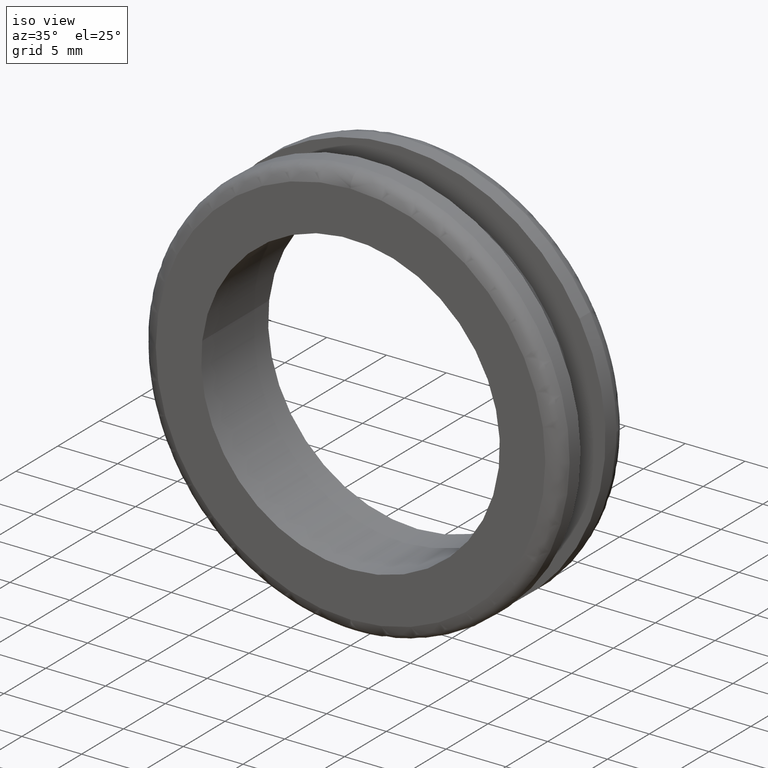
[diagram: clean part render]
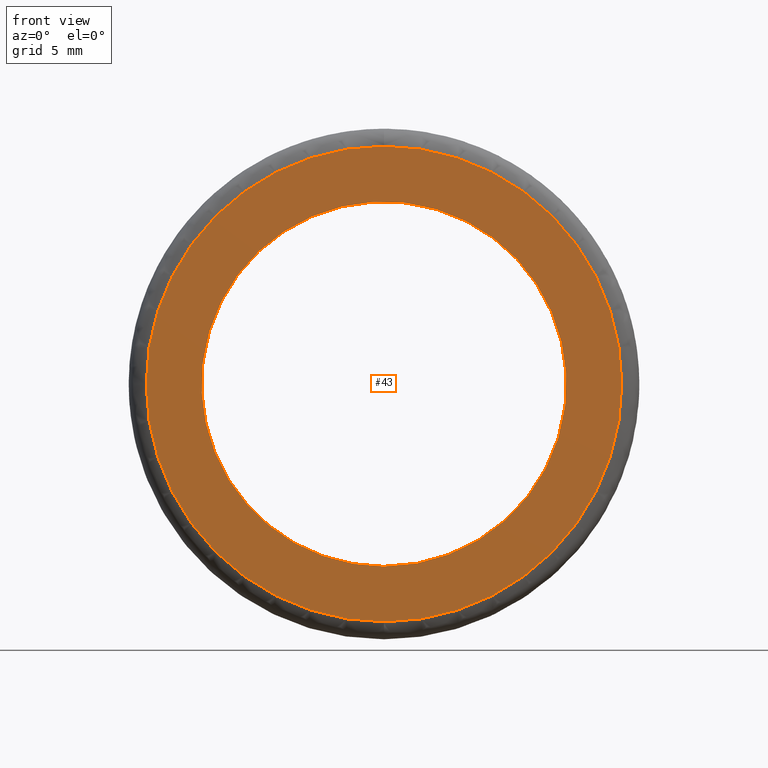
[diagram: tour spotlight — one face highlighted and labeled with its STEP entity id]
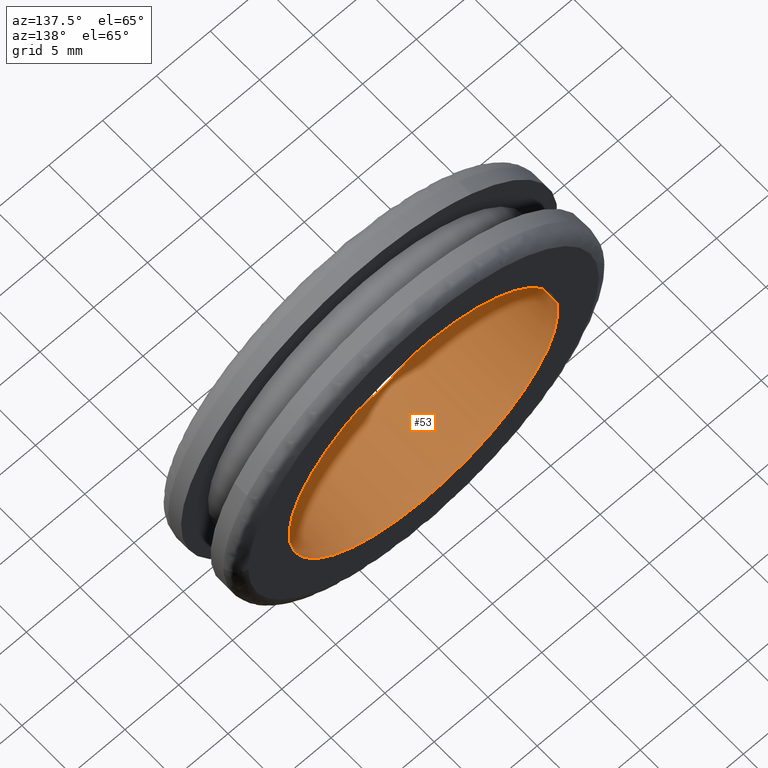
[diagram: tour spotlight — one face highlighted and labeled with its STEP entity id]
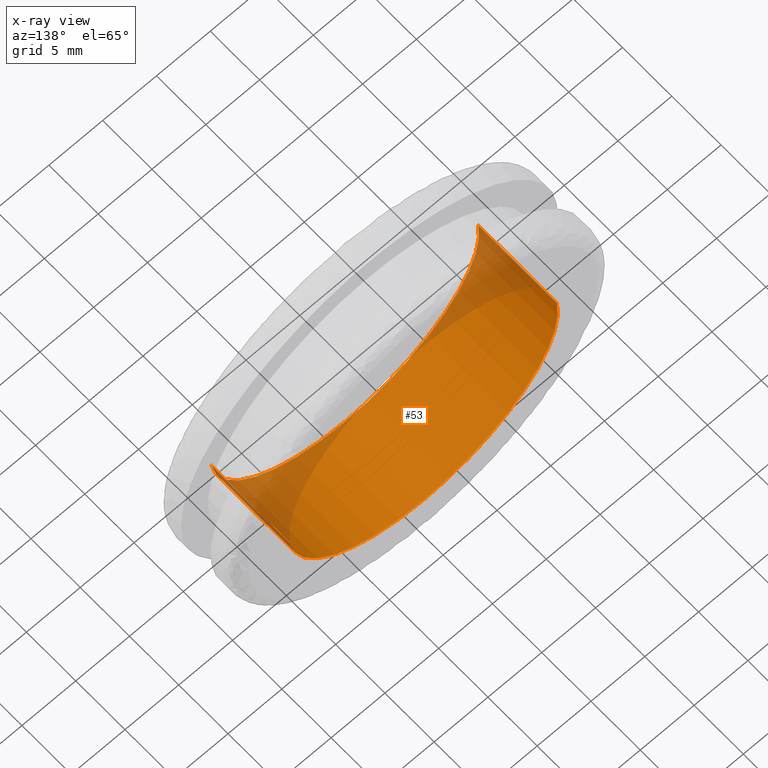
[diagram: x-ray of the same camera — body ghosted, this tour face saturated]
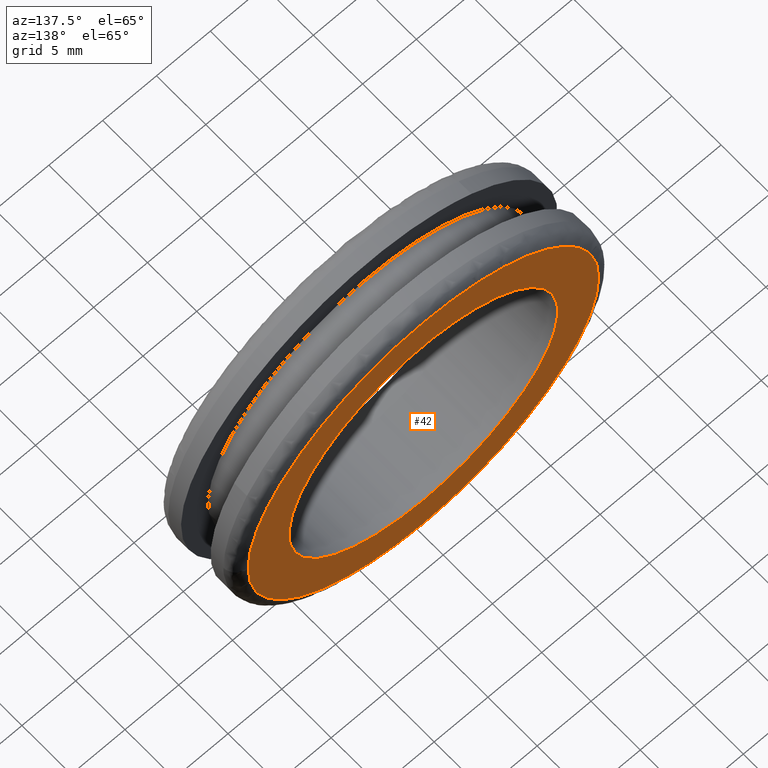
[diagram: tour spotlight — one face highlighted and labeled with its STEP entity id]
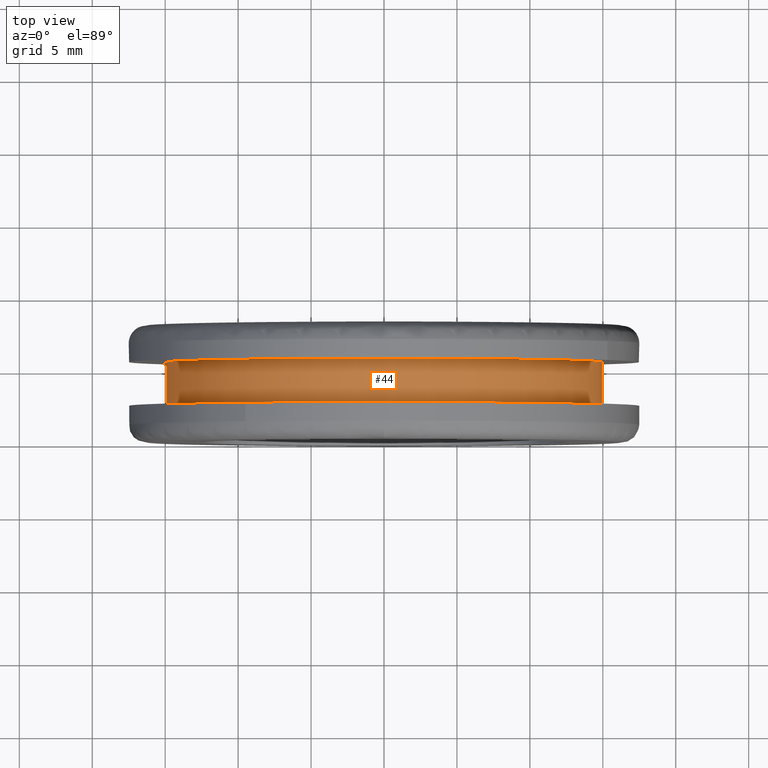
[diagram: tour spotlight — one face highlighted and labeled with its STEP entity id]
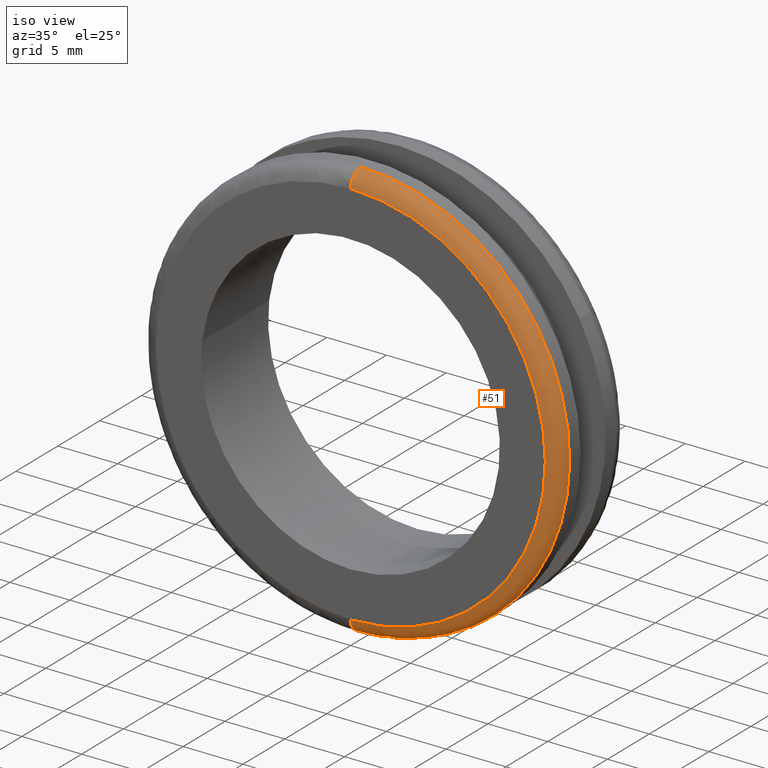
[diagram: tour spotlight — one face highlighted and labeled with its STEP entity id]
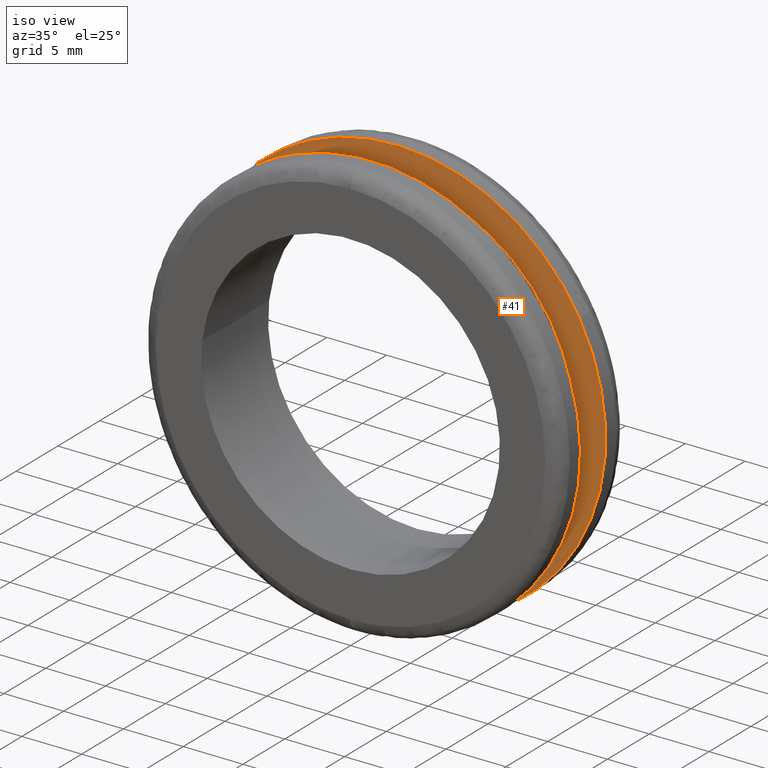
[diagram: tour spotlight — one face highlighted and labeled with its STEP entity id]
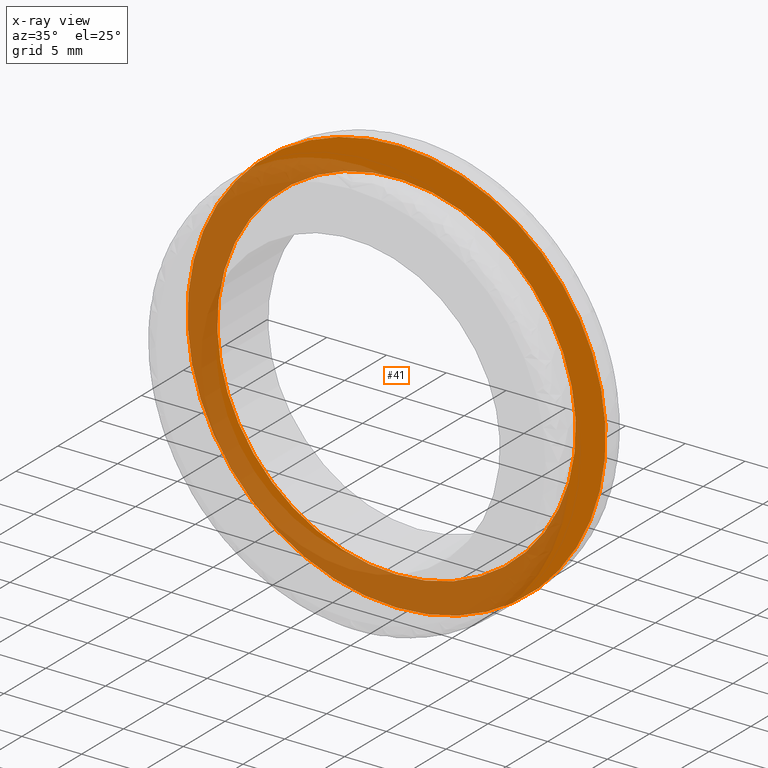
[diagram: x-ray of the same camera — body ghosted, this tour face saturated]
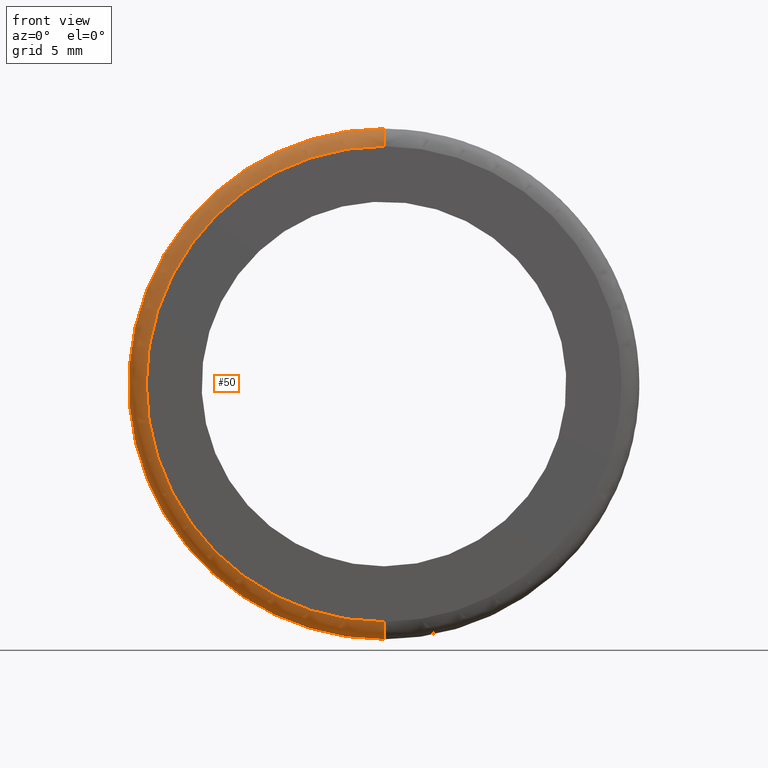
[diagram: tour spotlight — one face highlighted and labeled with its STEP entity id]
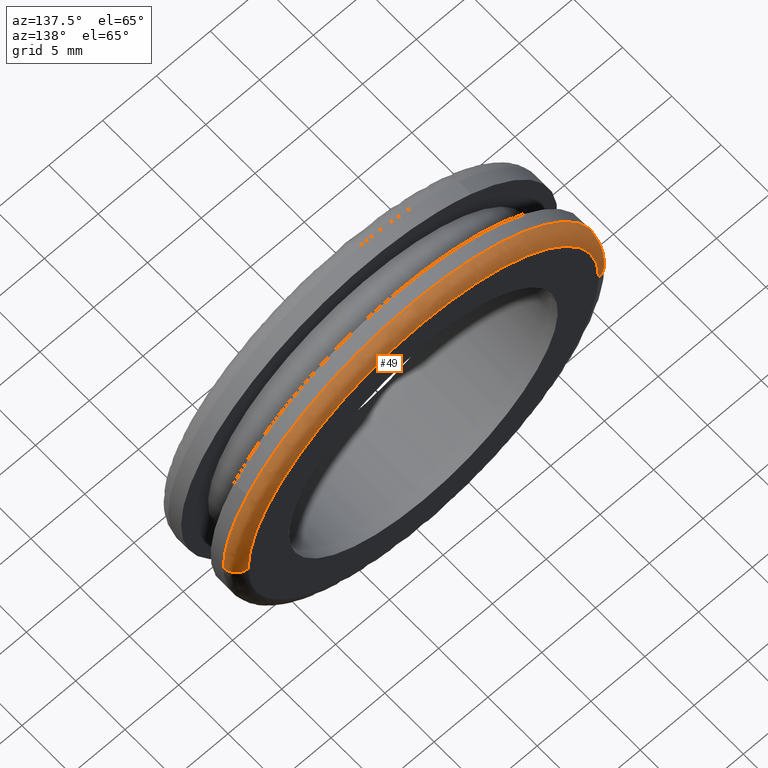
[diagram: tour spotlight — one face highlighted and labeled with its STEP entity id]
A machine part: a face-by-face anatomy tour. The part has 16 B-rep faces; the first image is the clean iso view, then the 8 largest visible faces are spotlighted one at a time (largest first), each with its STEP entity span.

Face 1 — front view, entity #43. In plain terms, the highlighted planar face has unit normal (0, 1, 0).
Definition (entity closure, byte-faithful):
#43=ADVANCED_FACE('',(#90,#91),#89,.F.);
#89=PLANE('',#241);
#90=FACE_OUTER_BOUND('',#242,.T.);
#91=FACE_BOUND('',#243,.T.);
#238=CARTESIAN_POINT('',(-3.38789137985E+001,-2.64515000000E-015,-3.74900000015E+001));
#239=DIRECTION('',(0.00000000000E+000,1.00000000000E+000,0.00000000000E+000));
#240=DIRECTION('',(0.00000000000E+000,0.00000000000E+000,1.00000000000E+000));
#241=AXIS2_PLACEMENT_3D('',#238,#239,#240);
#242=EDGE_LOOP('',(#406,#407));
#243=EDGE_LOOP('',(#408,#409,#410));
#406=ORIENTED_EDGE('',*,*,#504,.T.);
#407=ORIENTED_EDGE('',*,*,#505,.T.);
#408=ORIENTED_EDGE('',*,*,#506,.F.);
#409=ORIENTED_EDGE('',*,*,#507,.F.);
#410=ORIENTED_EDGE('',*,*,#508,.F.);
#504=EDGE_CURVE('',#661,#662,#663,.T.);
#505=EDGE_CURVE('',#662,#661,#669,.T.);
#506=EDGE_CURVE('',#675,#676,#677,.T.);
#507=EDGE_CURVE('',#683,#675,#684,.T.);
#508=EDGE_CURVE('',#676,#683,#690,.T.);
#661=VERTEX_POINT('',#956);
#662=VERTEX_POINT('',#957);
#663=CIRCLE('',#961,1.63000000012E+001);
#669=CIRCLE('',#965,1.63000000012E+001);
#675=VERTEX_POINT('',#966);
#676=VERTEX_POINT('',#967);
#677=CIRCLE('',#971,1.25000000000E+001);
#683=VERTEX_POINT('',#972);
#684=CIRCLE('',#976,1.25000000000E+001);
#690=CIRCLE('',#980,1.25000000000E+001);
#956=CARTESIAN_POINT('',(-3.02206897797E-015,4.51776817437E-016,1.63000000023E+001));
#957=CARTESIAN_POINT('',(-4.31335559862E-010,-2.99416300000E-015,-1.63000000000E+001));
#958=CARTESIAN_POINT('',(-2.15674589299E-010,-1.27119309128E-015,1.16149578844E-009));
#959=DIRECTION('',(-4.88729944223E-032,-1.00000000000E+000,1.05703675374E-016));
#960=DIRECTION('',(1.32308179418E-011,1.05703675374E-016,1.00000000000E+000));
#961=AXIS2_PLACEMENT_3D('',#958,#959,#960);
#962=CARTESIAN_POINT('',(-2.15674589299E-010,-1.27119309128E-015,1.16149578844E-009));
#963=DIRECTION('',(-4.88729944223E-032,-1.00000000000E+000,1.05703675374E-016));
#964=DIRECTION('',(1.32308179418E-011,1.05703675374E-016,1.00000000000E+000));
#965=AXIS2_PLACEMENT_3D('',#962,#963,#964);
#966=CARTESIAN_POINT('',(-1.24126196191E+001,2.54997240288E-016,1.47542339399E+000));
#967=CARTESIAN_POINT('',(-5.10702591328E-015,2.09342961238E-014,-1.25000000000E+001));
#968=CARTESIAN_POINT('',(3.67794683598E-012,-3.82642311859E-016,8.09308176031E-012));
#969=DIRECTION('',(-2.54076933105E-016,-1.00000000000E+000,-1.70535507485E-015));
#970=DIRECTION('',(-2.94250734889E-013,1.70535507485E-015,-1.00000000000E+000));
#971=AXIS2_PLACEMENT_3D('',#968,#969,#970);
#972=CARTESIAN_POINT('',(1.24123638863E+001,-1.01655059469E-015,-1.47757326503E+000));
#973=CARTESIAN_POINT('',(3.67794683598E-012,-3.82642311859E-016,8.09308176031E-012));
#974=DIRECTION('',(-2.54076933105E-016,-1.00000000000E+000,-1.70535507485E-015));
#975=DIRECTION('',(-2.94250734889E-013,1.70535507485E-015,-1.00000000000E+000));
#976=AXIS2_PLACEMENT_3D('',#973,#974,#975);
#977=CARTESIAN_POINT('',(3.67794683598E-012,-3.82642311859E-016,8.09308176031E-012));
#978=DIRECTION('',(-2.54076933105E-016,-1.00000000000E+000,-1.70535507485E-015));
#979=DIRECTION('',(-2.94250734889E-013,1.70535507485E-015,-1.00000000000E+000));
#980=AXIS2_PLACEMENT_3D('',#977,#978,#979);

Face 2 — auxiliary view, entity #53. An x-ray twin of the same camera follows (body ghosted, this face saturated) — the face is partly hidden behind the body. In plain terms, the highlighted cylindrical surface (partial cylindrical patch) has radius 12.5 mm, axis along (0, 1, 0).
Definition (entity closure, byte-faithful):
#53=ADVANCED_FACE('',(#191),#190,.F.);
#190=CYLINDRICAL_SURFACE('',#376,1.25000000000E+001);
#191=FACE_OUTER_BOUND('',#377,.T.);
#373=CARTESIAN_POINT('',(1.00183340316E-016,8.20000000000E+000,1.05282378509E-014));
#374=DIRECTION('',(2.69858068292E-016,1.00000000000E+000,2.57127747938E-015));
#375=DIRECTION('',(-9.93009526364E-001,-3.55271367880E-017,1.18034234657E-001));
#376=AXIS2_PLACEMENT_3D('',#373,#374,#375);
#377=EDGE_LOOP('',(#466,#467,#468,#469,#470,#471));
#466=ORIENTED_EDGE('',*,*,#501,.F.);
#467=ORIENTED_EDGE('',*,*,#503,.F.);
#468=ORIENTED_EDGE('',*,*,#531,.F.);
#469=ORIENTED_EDGE('',*,*,#506,.T.);
#470=ORIENTED_EDGE('',*,*,#508,.T.);
#471=ORIENTED_EDGE('',*,*,#532,.T.);
#501=EDGE_CURVE('',#640,#641,#642,.T.);
#503=EDGE_CURVE('',#648,#640,#655,.T.);
#506=EDGE_CURVE('',#675,#676,#677,.T.);
#508=EDGE_CURVE('',#676,#683,#690,.T.);
#531=EDGE_CURVE('',#675,#648,#842,.T.);
#532=EDGE_CURVE('',#683,#641,#848,.T.);
#640=VERTEX_POINT('',#941);
#641=VERTEX_POINT('',#942);
#642=CIRCLE('',#946,1.25000000000E+001);
#648=VERTEX_POINT('',#947);
#655=CIRCLE('',#955,1.25000000000E+001);
#675=VERTEX_POINT('',#966);
#676=VERTEX_POINT('',#967);
#677=CIRCLE('',#971,1.25000000000E+001);
#683=VERTEX_POINT('',#972);
#690=CIRCLE('',#980,1.25000000000E+001);
#842=(BOUNDED_CURVE() B_SPLINE_CURVE(1,(#1075,#1076),.UNSPECIFIED.,.F.,.F.) B_SPLINE_CURVE_WITH_KNOTS((2,2),(8.33333366442E-002,9.16666667899E-001),.UNSPECIFIED.) CURVE() GEOMETRIC_REPRESENTATION_ITEM() RATIONAL_B_SPLINE_CURVE((1.00000000000E+000,1.00000000000E+000)) REPRESENTATION_ITEM('') );
#848=(BOUNDED_CURVE() B_SPLINE_CURVE(1,(#1077,#1078),.UNSPECIFIED.,.F.,.F.) B_SPLINE_CURVE_WITH_KNOTS((2,2),(8.33333333333E-002,9.16666666667E-001),.UNSPECIFIED.) CURVE() GEOMETRIC_REPRESENTATION_ITEM() RATIONAL_B_SPLINE_CURVE((7.50000000000E-001,7.50000000000E-001)) REPRESENTATION_ITEM('') );
#941=CARTESIAN_POINT('',(-2.22044604925E-016,8.00000000000E+000,-1.25000000000E+001));
#942=CARTESIAN_POINT('',(1.24123638863E+001,8.00000000000E+000,-1.47757326503E+000));
#943=CARTESIAN_POINT('',(3.76587649953E-012,8.00000000000E+000,8.29203372632E-012));
#944=DIRECTION('',(-1.43746098551E-014,-1.00000000000E+000,-9.68536429420E-014));
#945=DIRECTION('',(-3.00939828612E-013,9.68536429420E-014,-1.00000000000E+000));
#946=AXIS2_PLACEMENT_3D('',#943,#944,#945);
#947=CARTESIAN_POINT('',(-1.24126196191E+001,8.00000000000E+000,1.47542339399E+000));
#952=CARTESIAN_POINT('',(3.76587649953E-012,8.00000000000E+000,8.29203372632E-012));
#953=DIRECTION('',(-1.43746098551E-014,-1.00000000000E+000,-9.68536429420E-014));
#954=DIRECTION('',(-3.00939828612E-013,9.68536429420E-014,-1.00000000000E+000));
#955=AXIS2_PLACEMENT_3D('',#952,#953,#954);
#966=CARTESIAN_POINT('',(-1.24126196191E+001,2.54997240288E-016,1.47542339399E+000));
#967=CARTESIAN_POINT('',(-5.10702591328E-015,2.09342961238E-014,-1.25000000000E+001));
#968=CARTESIAN_POINT('',(3.67794683598E-012,-3.82642311859E-016,8.09308176031E-012));
#969=DIRECTION('',(-2.54076933105E-016,-1.00000000000E+000,-1.70535507485E-015));
#970=DIRECTION('',(-2.94250734889E-013,1.70535507485E-015,-1.00000000000E+000));
#971=AXIS2_PLACEMENT_3D('',#968,#969,#970);
#972=CARTESIAN_POINT('',(1.24123638863E+001,-1.01655059469E-015,-1.47757326503E+000));
#977=CARTESIAN_POINT('',(3.67794683598E-012,-3.82642311859E-016,8.09308176031E-012));
#978=DIRECTION('',(-2.54076933105E-016,-1.00000000000E+000,-1.70535507485E-015));
#979=DIRECTION('',(-2.94250734889E-013,1.70535507485E-015,-1.00000000000E+000));
#980=AXIS2_PLACEMENT_3D('',#977,#978,#979);
#1075=CARTESIAN_POINT('',(-1.24126190795E+001,3.17843326103E-008,1.47542793321E+000));
#1076=CARTESIAN_POINT('',(-1.24126190795E+001,8.00000001184E+000,1.47542793321E+000));
#1077=CARTESIAN_POINT('',(1.24126190795E+001,-2.96059473233E-016,-1.47542793321E+000));
#1078=CARTESIAN_POINT('',(1.24126190795E+001,8.00000000000E+000,-1.47542793321E+000));

Face 3 — auxiliary view, entity #42. In plain terms, the highlighted planar face has unit normal (0, -1, 0).
Definition (entity closure, byte-faithful):
#42=ADVANCED_FACE('',(#79,#80),#78,.F.);
#78=PLANE('',#235);
#79=FACE_OUTER_BOUND('',#236,.T.);
#80=FACE_BOUND('',#237,.T.);
#232=CARTESIAN_POINT('',(-3.38789137987E+001,8.00000000000E+000,3.74900000017E+001));
#233=DIRECTION('',(0.00000000000E+000,-1.00000000000E+000,0.00000000000E+000));
#234=DIRECTION('',(0.00000000000E+000,0.00000000000E+000,-1.00000000000E+000));
#235=AXIS2_PLACEMENT_3D('',#232,#233,#234);
#236=EDGE_LOOP('',(#400,#401,#402));
#237=EDGE_LOOP('',(#403,#404,#405));
#400=ORIENTED_EDGE('',*,*,#498,.F.);
#401=ORIENTED_EDGE('',*,*,#499,.F.);
#402=ORIENTED_EDGE('',*,*,#500,.F.);
#403=ORIENTED_EDGE('',*,*,#501,.T.);
#404=ORIENTED_EDGE('',*,*,#502,.T.);
#405=ORIENTED_EDGE('',*,*,#503,.T.);
#498=EDGE_CURVE('',#619,#620,#621,.T.);
#499=EDGE_CURVE('',#627,#619,#628,.T.);
#500=EDGE_CURVE('',#620,#627,#634,.T.);
#501=EDGE_CURVE('',#640,#641,#642,.T.);
#502=EDGE_CURVE('',#641,#648,#649,.T.);
#503=EDGE_CURVE('',#648,#640,#655,.T.);
#619=VERTEX_POINT('',#926);
#620=VERTEX_POINT('',#927);
#621=CIRCLE('',#931,1.63000000013E+001);
#627=VERTEX_POINT('',#932);
#628=CIRCLE('',#936,1.63000000013E+001);
#634=CIRCLE('',#940,1.63000000013E+001);
#640=VERTEX_POINT('',#941);
#641=VERTEX_POINT('',#942);
#642=CIRCLE('',#946,1.25000000000E+001);
#648=VERTEX_POINT('',#947);
#649=CIRCLE('',#951,1.25000000000E+001);
#655=CIRCLE('',#955,1.25000000000E+001);
#926=CARTESIAN_POINT('',(-1.63000000018E+001,8.00000000000E+000,3.06336019179E-013));
#927=CARTESIAN_POINT('',(-6.21724893790E-015,8.00000000000E+000,-1.63000000025E+001));
#928=CARTESIAN_POINT('',(-5.49611911538E-010,8.00000000000E+000,-1.25473142987E-009));
#929=DIRECTION('',(7.77937537859E-015,-1.00000000000E+000,8.62827210442E-014));
#930=DIRECTION('',(3.37185279697E-011,-8.62827210439E-014,-1.00000000000E+000));
#931=AXIS2_PLACEMENT_3D('',#928,#929,#930);
#932=CARTESIAN_POINT('',(1.62999999129E+001,8.00000000000E+000,1.69162723080E-003));
#933=CARTESIAN_POINT('',(-5.49611911538E-010,8.00000000000E+000,-1.25473142987E-009));
#934=DIRECTION('',(7.77937537859E-015,-1.00000000000E+000,8.62827210442E-014));
#935=DIRECTION('',(3.37185279697E-011,-8.62827210439E-014,-1.00000000000E+000));
#936=AXIS2_PLACEMENT_3D('',#933,#934,#935);
#937=CARTESIAN_POINT('',(-5.49611911538E-010,8.00000000000E+000,-1.25473142987E-009));
#938=DIRECTION('',(7.77937537859E-015,-1.00000000000E+000,8.62827210442E-014));
#939=DIRECTION('',(3.37185279697E-011,-8.62827210439E-014,-1.00000000000E+000));
#940=AXIS2_PLACEMENT_3D('',#937,#938,#939);
#941=CARTESIAN_POINT('',(-2.22044604925E-016,8.00000000000E+000,-1.25000000000E+001));
#942=CARTESIAN_POINT('',(1.24123638863E+001,8.00000000000E+000,-1.47757326503E+000));
#943=CARTESIAN_POINT('',(3.76587649953E-012,8.00000000000E+000,8.29203372632E-012));
#944=DIRECTION('',(-1.43746098551E-014,-1.00000000000E+000,-9.68536429420E-014));
#945=DIRECTION('',(-3.00939828612E-013,9.68536429420E-014,-1.00000000000E+000));
#946=AXIS2_PLACEMENT_3D('',#943,#944,#945);
#947=CARTESIAN_POINT('',(-1.24126196191E+001,8.00000000000E+000,1.47542339399E+000));
#948=CARTESIAN_POINT('',(3.76587649953E-012,8.00000000000E+000,8.29203372632E-012));
#949=DIRECTION('',(-1.43746098551E-014,-1.00000000000E+000,-9.68536429420E-014));
#950=DIRECTION('',(-3.00939828612E-013,9.68536429420E-014,-1.00000000000E+000));
#951=AXIS2_PLACEMENT_3D('',#948,#949,#950);
#952=CARTESIAN_POINT('',(3.76587649953E-012,8.00000000000E+000,8.29203372632E-012));
#953=DIRECTION('',(-1.43746098551E-014,-1.00000000000E+000,-9.68536429420E-014));
#954=DIRECTION('',(-3.00939828612E-013,9.68536429420E-014,-1.00000000000E+000));
#955=AXIS2_PLACEMENT_3D('',#952,#953,#954);

Face 4 — top view, entity #44. In plain terms, the highlighted cylindrical surface (partial cylindrical patch) has radius 15 mm, axis along (0, 1, 0).
Definition (entity closure, byte-faithful):
#44=ADVANCED_FACE('',(#101),#100,.T.);
#100=CYLINDRICAL_SURFACE('',#247,1.50000000000E+001);
#101=FACE_OUTER_BOUND('',#248,.T.);
#244=CARTESIAN_POINT('',(-2.04937555702E-015,5.57500000000E+000,1.38179831511E-015));
#245=DIRECTION('',(9.53424932889E-017,1.00000000000E+000,1.05293139561E-015));
#246=DIRECTION('',(-9.93009526364E-001,-2.96059473233E-017,1.18034234657E-001));
#247=AXIS2_PLACEMENT_3D('',#244,#245,#246);
#248=EDGE_LOOP('',(#411,#412,#413,#414));
#411=ORIENTED_EDGE('',*,*,#496,.T.);
#412=ORIENTED_EDGE('',*,*,#509,.F.);
#413=ORIENTED_EDGE('',*,*,#490,.F.);
#414=ORIENTED_EDGE('',*,*,#510,.T.);
#490=EDGE_CURVE('',#557,#564,#565,.T.);
#496=EDGE_CURVE('',#606,#598,#607,.T.);
#509=EDGE_CURVE('',#564,#598,#696,.T.);
#510=EDGE_CURVE('',#557,#606,#702,.T.);
#557=VERTEX_POINT('',#882);
#564=VERTEX_POINT('',#887);
#565=CIRCLE('',#891,1.50000000000E+001);
#598=VERTEX_POINT('',#911);
#606=VERTEX_POINT('',#917);
#607=CIRCLE('',#921,1.50000000000E+001);
#696=(BOUNDED_CURVE() B_SPLINE_CURVE(1,(#981,#982),.UNSPECIFIED.,.F.,.F.) B_SPLINE_CURVE_WITH_KNOTS((2,2),(8.33333432679E-002,9.16666665086E-001),.UNSPECIFIED.) CURVE() GEOMETRIC_REPRESENTATION_ITEM() RATIONAL_B_SPLINE_CURVE((1.00000000000E+000,1.00000000000E+000)) REPRESENTATION_ITEM('') );
#702=(BOUNDED_CURVE() B_SPLINE_CURVE(1,(#983,#984),.UNSPECIFIED.,.F.,.F.) B_SPLINE_CURVE_WITH_KNOTS((2,2),(8.33333333352E-002,9.16666666667E-001),.UNSPECIFIED.) CURVE() GEOMETRIC_REPRESENTATION_ITEM() RATIONAL_B_SPLINE_CURVE((7.50000000000E-001,7.50000000000E-001)) REPRESENTATION_ITEM('') );
#882=CARTESIAN_POINT('',(1.48948366656E+001,2.50000000000E+000,-1.77308790135E+000));
#887=CARTESIAN_POINT('',(-1.48951429350E+001,2.50000000000E+000,1.77051318750E+000));
#888=CARTESIAN_POINT('',(3.28714833131E-012,2.50000000000E+000,7.24753590475E-012));
#889=DIRECTION('',(-2.94798637559E-014,-1.00000000000E+000,-1.97596490863E-013));
#890=DIRECTION('',(-2.18561280185E-013,1.97596490863E-013,-1.00000000000E+000));
#891=AXIS2_PLACEMENT_3D('',#888,#889,#890);
#911=CARTESIAN_POINT('',(-1.48951429350E+001,5.50000000000E+000,1.77051318750E+000));
#917=CARTESIAN_POINT('',(1.48948366656E+001,5.50000000000E+000,-1.77308790135E+000));
#918=CARTESIAN_POINT('',(3.21520587931E-012,5.50000000000E+000,7.08322289711E-012));
#919=DIRECTION('',(9.88391597559E-018,-1.00000000000E+000,8.31529021760E-017));
#920=DIRECTION('',(-2.14037121360E-013,-8.31529021760E-017,-1.00000000000E+000));
#921=AXIS2_PLACEMENT_3D('',#918,#919,#920);
#981=CARTESIAN_POINT('',(-1.48951428955E+001,2.50000003576E+000,1.77051351985E+000));
#982=CARTESIAN_POINT('',(-1.48951428955E+001,5.49999999431E+000,1.77051351985E+000));
#983=CARTESIAN_POINT('',(1.48951428955E+001,2.50000000000E+000,-1.77051351985E+000));
#984=CARTESIAN_POINT('',(1.48951428955E+001,5.50000000000E+000,-1.77051351985E+000));

Face 5 — iso view, entity #51. In plain terms, the highlighted face is a freeform B-spline surface patch.
Definition (entity closure, byte-faithful):
#51=ADVANCED_FACE('',(#171),#170,.T.);
#170=( BOUNDED_SURFACE() B_SPLINE_SURFACE( 2,2,((#342,#343,#344,#345,#346),(#347,#348,#349,#350,#351),(#352,#353,#354,#355,#356),(#357,#358,#359,#360,#361),(#362,#363,#364,#365,#366)), .UNSPECIFIED.,.F.,.F.,.F.) B_SPLINE_SURFACE_WITH_KNOTS((3,2,3),(3,2,3),(0.00000000000E+000,5.00000000000E-001,1.00000000000E+000),(0.00000000000E+000,5.00000000000E-001,1.00000000000E+000), .UNSPECIFIED. ) GEOMETRIC_REPRESENTATION_ITEM() RATIONAL_B_SPLINE_SURFACE(((1.00000000000E+000,7.07106780105E-001,1.00000000000E+000,7.07106780105E-001,1.00000000000E+000),(7.07106781187E-001,4.99999999236E-001,7.07106781187E-001,4.99999999236E-001,7.07106781187E-001),(1.00000000000E+000,7.07106780105E-001,1.00000000000E+000,7.07106780105E-001,1.00000000000E+000),(7.07106781187E-001,4.99999999236E-001,7.07106781187E-001,4.99999999236E-001,7.07106781187E-001),(1.00000000000E+000,7.07106780105E-001,1.00000000000E+000,7.07106780105E-001,1.00000000000E+000))) REPRESENTATION_ITEM('') SURFACE() );
#171=FACE_OUTER_BOUND('',#367,.T.);
#342=CARTESIAN_POINT('',(-2.18228220356E-012,1.20000000000E+000,-1.75000000000E+001));
#343=CARTESIAN_POINT('',(-2.18228220356E-012,-3.66922035451E-009,-1.75000000000E+001));
#344=CARTESIAN_POINT('',(-2.18228219870E-012,1.08801856413E-014,-1.62999999963E+001));
#345=CARTESIAN_POINT('',(-2.18228219385E-012,3.66924217879E-009,-1.50999999927E+001));
#346=CARTESIAN_POINT('',(-2.18228219385E-012,1.20000000734E+000,-1.51000000000E+001));
#347=CARTESIAN_POINT('',(1.75000000000E+001,1.20000000000E+000,-1.75000000000E+001));
#348=CARTESIAN_POINT('',(1.75000000000E+001,-3.66922035451E-009,-1.75000000000E+001));
#349=CARTESIAN_POINT('',(1.62999999963E+001,1.08801856413E-014,-1.62999999963E+001));
#350=CARTESIAN_POINT('',(1.50999999927E+001,3.66924217879E-009,-1.50999999927E+001));
#351=CARTESIAN_POINT('',(1.51000000000E+001,1.20000000734E+000,-1.51000000000E+001));
#352=CARTESIAN_POINT('',(1.75000000000E+001,1.20000000000E+000,5.11869079852E-014));
#353=CARTESIAN_POINT('',(1.75000000000E+001,-3.66922035451E-009,5.11869079852E-014));
#354=CARTESIAN_POINT('',(1.62999999963E+001,1.08801856413E-014,5.12603916468E-014));
#355=CARTESIAN_POINT('',(1.50999999927E+001,3.66924217879E-009,5.13338753085E-014));
#356=CARTESIAN_POINT('',(1.51000000000E+001,1.20000000734E+000,5.13338753080E-014));
#357=CARTESIAN_POINT('',(1.75000000000E+001,1.20000000000E+000,1.75000000000E+001));
#358=CARTESIAN_POINT('',(1.75000000000E+001,-3.66922035451E-009,1.75000000000E+001));
#359=CARTESIAN_POINT('',(1.62999999963E+001,1.08801856413E-014,1.62999999963E+001));
#360=CARTESIAN_POINT('',(1.50999999927E+001,3.66924217879E-009,1.50999999927E+001));
#361=CARTESIAN_POINT('',(1.51000000000E+001,1.20000000734E+000,1.51000000000E+001));
#362=CARTESIAN_POINT('',(-2.18013893010E-012,1.20000000000E+000,1.75000000000E+001));
#363=CARTESIAN_POINT('',(-2.18013893010E-012,-3.66922035451E-009,1.75000000000E+001));
#364=CARTESIAN_POINT('',(-2.18028589257E-012,1.08801856413E-014,1.62999999963E+001));
#365=CARTESIAN_POINT('',(-2.18043285504E-012,3.66924217879E-009,1.50999999927E+001));
#366=CARTESIAN_POINT('',(-2.18043285504E-012,1.20000000734E+000,1.51000000000E+001));
#367=EDGE_LOOP('',(#456,#457,#458,#459,#460,#461));
#456=ORIENTED_EDGE('',*,*,#516,.T.);
#457=ORIENTED_EDGE('',*,*,#514,.T.);
#458=ORIENTED_EDGE('',*,*,#513,.T.);
#459=ORIENTED_EDGE('',*,*,#529,.T.);
#460=ORIENTED_EDGE('',*,*,#505,.F.);
#461=ORIENTED_EDGE('',*,*,#530,.F.);
#505=EDGE_CURVE('',#662,#661,#669,.T.);
#513=EDGE_CURVE('',#722,#715,#723,.T.);
#514=EDGE_CURVE('',#729,#722,#730,.T.);
#516=EDGE_CURVE('',#742,#729,#743,.T.);
#529=EDGE_CURVE('',#715,#661,#830,.T.);
#530=EDGE_CURVE('',#742,#662,#836,.T.);
#661=VERTEX_POINT('',#956);
#662=VERTEX_POINT('',#957);
#669=CIRCLE('',#965,1.63000000012E+001);
#715=VERTEX_POINT('',#988);
#722=VERTEX_POINT('',#993);
#723=CIRCLE('',#997,1.75000000000E+001);
#729=VERTEX_POINT('',#998);
#730=CIRCLE('',#1002,1.75000000000E+001);
#742=VERTEX_POINT('',#1005);
#743=CIRCLE('',#1009,1.75000000000E+001);
#830=(BOUNDED_CURVE() B_SPLINE_CURVE(2,(#1067,#1068,#1069),.UNSPECIFIED.,.F.,.F.) B_SPLINE_CURVE_WITH_KNOTS((3,3),(0.00000000000E+000,5.00000000000E-001),.UNSPECIFIED.) CURVE() GEOMETRIC_REPRESENTATION_ITEM() RATIONAL_B_SPLINE_CURVE((1.00000000000E+000,7.07106780105E-001,1.00000000000E+000)) REPRESENTATION_ITEM('') );
#836=(BOUNDED_CURVE() B_SPLINE_CURVE(3,(#1070,#1071,#1072,#1073,#1074),.UNSPECIFIED.,.F.,.F.) B_SPLINE_CURVE_WITH_KNOTS((4,1,4),(0.00000000000E+000,2.50000004269E-001,5.00000007414E-001),.UNSPECIFIED.) CURVE() GEOMETRIC_REPRESENTATION_ITEM() RATIONAL_B_SPLINE_CURVE((1.00000000000E+000,1.00000000000E+000,1.00000000000E+000,1.00000000000E+000,1.00000000000E+000)) REPRESENTATION_ITEM('') );
#956=CARTESIAN_POINT('',(-3.02206897797E-015,4.51776817437E-016,1.63000000023E+001));
#957=CARTESIAN_POINT('',(-4.31335559862E-010,-2.99416300000E-015,-1.63000000000E+001));
#962=CARTESIAN_POINT('',(-2.15674589299E-010,-1.27119309128E-015,1.16149578844E-009));
#963=DIRECTION('',(-4.88729944223E-032,-1.00000000000E+000,1.05703675374E-016));
#964=DIRECTION('',(1.32308179418E-011,1.05703675374E-016,1.00000000000E+000));
#965=AXIS2_PLACEMENT_3D('',#962,#963,#964);
#988=CARTESIAN_POINT('',(0.00000000000E+000,1.20000000000E+000,1.75000000000E+001));
#993=CARTESIAN_POINT('',(1.74986182736E+001,1.19999999995E+000,-2.19905697968E-001));
#994=CARTESIAN_POINT('',(1.77635683940E-015,1.19999999992E+000,-3.55271367880E-015));
#995=DIRECTION('',(7.14515478784E-012,-1.00000000000E+000,4.23763596986E-010));
#996=DIRECTION('',(-9.99921044204E-001,-1.81956037539E-012,1.25660398839E-002));
#997=AXIS2_PLACEMENT_3D('',#994,#995,#996);
#998=CARTESIAN_POINT('',(9.49807078876E+000,1.19999999999E+000,-1.46981853061E+001));
#999=CARTESIAN_POINT('',(-1.23332455360E-011,1.19999999995E+000,7.92077514689E-012));
#1000=DIRECTION('',(2.04828194437E-014,-1.00000000000E+000,-2.69712309461E-012));
#1001=DIRECTION('',(-5.42728706712E-001,-2.27645204274E-012,8.39908060987E-001));
#1002=AXIS2_PLACEMENT_3D('',#999,#1000,#1001);
#1005=CARTESIAN_POINT('',(-3.02387297383E-004,1.20000000000E+000,-1.74999999974E+001));
#1006=CARTESIAN_POINT('',(-1.23332455360E-011,1.19999999995E+000,7.92077514689E-012));
#1007=DIRECTION('',(2.04828194437E-014,-1.00000000000E+000,-2.69712309461E-012));
#1008=DIRECTION('',(-5.42728706712E-001,-2.27645204274E-012,8.39908060987E-001));
#1009=AXIS2_PLACEMENT_3D('',#1006,#1007,#1008);
#1067=CARTESIAN_POINT('',(-2.18442519390E-012,1.20000000000E+000,1.75000000000E+001));
#1068=CARTESIAN_POINT('',(-2.18442519390E-012,-3.66922035451E-009,1.75000000000E+001));
#1069=CARTESIAN_POINT('',(-2.18427824114E-012,1.08801856413E-014,1.62999999963E+001));
#1070=CARTESIAN_POINT('',(-2.17958984194E-012,1.20000000000E+000,-1.75000000000E+001));
#1071=CARTESIAN_POINT('',(-2.17983831114E-012,8.88659466915E-001,-1.75026688713E+001));
#1072=CARTESIAN_POINT('',(-2.18025911288E-012,2.59948409613E-001,-1.72400515664E+001));
#1073=CARTESIAN_POINT('',(-2.18027812145E-012,-2.66887871041E-003,-1.66113405028E+001));
#1074=CARTESIAN_POINT('',(-2.18018196092E-012,1.12209879195E-014,-1.62999999712E+001));

Face 6 — iso view, entity #41. An x-ray twin of the same camera follows (body ghosted, this face saturated) — the face is partly hidden behind the body. In plain terms, the highlighted planar face has unit normal (0, 1, 0).
Definition (entity closure, byte-faithful):
#41=ADVANCED_FACE('',(#68,#69),#67,.F.);
#67=PLANE('',#229);
#68=FACE_OUTER_BOUND('',#230,.T.);
#69=FACE_BOUND('',#231,.T.);
#226=CARTESIAN_POINT('',(-3.63730693493E+001,5.50000000000E+000,-2.27500034972E+001));
#227=DIRECTION('',(0.00000000000E+000,1.00000000000E+000,0.00000000000E+000));
#228=DIRECTION('',(0.00000000000E+000,0.00000000000E+000,1.00000000000E+000));
#229=AXIS2_PLACEMENT_3D('',#226,#227,#228);
#230=EDGE_LOOP('',(#394,#395,#396));
#231=EDGE_LOOP('',(#397,#398,#399));
#394=ORIENTED_EDGE('',*,*,#492,.T.);
#395=ORIENTED_EDGE('',*,*,#493,.T.);
#396=ORIENTED_EDGE('',*,*,#494,.T.);
#397=ORIENTED_EDGE('',*,*,#495,.F.);
#398=ORIENTED_EDGE('',*,*,#496,.F.);
#399=ORIENTED_EDGE('',*,*,#497,.F.);
#492=EDGE_CURVE('',#577,#578,#579,.T.);
#493=EDGE_CURVE('',#578,#585,#586,.T.);
#494=EDGE_CURVE('',#585,#577,#592,.T.);
#495=EDGE_CURVE('',#598,#599,#600,.T.);
#496=EDGE_CURVE('',#606,#598,#607,.T.);
#497=EDGE_CURVE('',#599,#606,#613,.T.);
#577=VERTEX_POINT('',#896);
#578=VERTEX_POINT('',#897);
#579=CIRCLE('',#901,1.75000011500E+001);
#585=VERTEX_POINT('',#902);
#586=CIRCLE('',#906,1.75000011500E+001);
#592=CIRCLE('',#910,1.75000011500E+001);
#598=VERTEX_POINT('',#911);
#599=VERTEX_POINT('',#912);
#600=CIRCLE('',#916,1.50000000000E+001);
#606=VERTEX_POINT('',#917);
#607=CIRCLE('',#921,1.50000000000E+001);
#613=CIRCLE('',#925,1.50000000000E+001);
#896=CARTESIAN_POINT('',(-5.98127582907E-014,5.50000000000E+000,-1.75000023001E+001));
#897=CARTESIAN_POINT('',(1.53110666183E+001,5.50000000000E+000,8.47474326839E+000));
#898=CARTESIAN_POINT('',(4.47224532962E-007,5.50000000000E+000,-1.15003596868E-006));
#899=DIRECTION('',(1.25607396695E-016,-1.00000000000E+000,-1.42108537492E-015));
#900=DIRECTION('',(-2.55556887697E-008,1.42108537171E-015,-1.00000000000E+000));
#901=AXIS2_PLACEMENT_3D('',#898,#899,#900);
#902=CARTESIAN_POINT('',(-1.53115620581E+001,5.50000000000E+000,-8.47384879417E+000));
#903=CARTESIAN_POINT('',(4.47224532962E-007,5.50000000000E+000,-1.15003596868E-006));
#904=DIRECTION('',(1.25607396695E-016,-1.00000000000E+000,-1.42108537492E-015));
#905=DIRECTION('',(-2.55556887697E-008,1.42108537171E-015,-1.00000000000E+000));
#906=AXIS2_PLACEMENT_3D('',#903,#904,#905);
#907=CARTESIAN_POINT('',(4.47224532962E-007,5.50000000000E+000,-1.15003596868E-006));
#908=DIRECTION('',(1.25607396695E-016,-1.00000000000E+000,-1.42108537492E-015));
#909=DIRECTION('',(-2.55556887697E-008,1.42108537171E-015,-1.00000000000E+000));
#910=AXIS2_PLACEMENT_3D('',#907,#908,#909);
#911=CARTESIAN_POINT('',(-1.48951429350E+001,5.50000000000E+000,1.77051318750E+000));
#912=CARTESIAN_POINT('',(-1.11022302463E-015,5.50000000000E+000,-1.50000000000E+001));
#913=CARTESIAN_POINT('',(3.21520587931E-012,5.50000000000E+000,7.08322289711E-012));
#914=DIRECTION('',(9.88391597559E-018,-1.00000000000E+000,8.31529021760E-017));
#915=DIRECTION('',(-2.14037121360E-013,-8.31529021760E-017,-1.00000000000E+000));
#916=AXIS2_PLACEMENT_3D('',#913,#914,#915);
#917=CARTESIAN_POINT('',(1.48948366656E+001,5.50000000000E+000,-1.77308790135E+000));
#918=CARTESIAN_POINT('',(3.21520587931E-012,5.50000000000E+000,7.08322289711E-012));
#919=DIRECTION('',(9.88391597559E-018,-1.00000000000E+000,8.31529021760E-017));
#920=DIRECTION('',(-2.14037121360E-013,-8.31529021760E-017,-1.00000000000E+000));
#921=AXIS2_PLACEMENT_3D('',#918,#919,#920);
#922=CARTESIAN_POINT('',(3.21520587931E-012,5.50000000000E+000,7.08322289711E-012));
#923=DIRECTION('',(9.88391597559E-018,-1.00000000000E+000,8.31529021760E-017));
#924=DIRECTION('',(-2.14037121360E-013,-8.31529021760E-017,-1.00000000000E+000));
#925=AXIS2_PLACEMENT_3D('',#922,#923,#924);

Face 7 — front view, entity #50. In plain terms, the highlighted face is a freeform B-spline surface patch.
Definition (entity closure, byte-faithful):
#50=ADVANCED_FACE('',(#161),#160,.T.);
#160=( BOUNDED_SURFACE() B_SPLINE_SURFACE( 2,2,((#316,#317,#318,#319,#320),(#321,#322,#323,#324,#325),(#326,#327,#328,#329,#330),(#331,#332,#333,#334,#335),(#336,#337,#338,#339,#340)), .UNSPECIFIED.,.F.,.F.,.F.) B_SPLINE_SURFACE_WITH_KNOTS((3,2,3),(3,2,3),(0.00000000000E+000,5.00000000000E-001,1.00000000000E+000),(0.00000000000E+000,5.00000000000E-001,1.00000000000E+000), .UNSPECIFIED. ) GEOMETRIC_REPRESENTATION_ITEM() RATIONAL_B_SPLINE_SURFACE(((1.00000000000E+000,7.07106780105E-001,1.00000000000E+000,7.07106780105E-001,1.00000000000E+000),(7.07106781187E-001,4.99999999236E-001,7.07106781187E-001,4.99999999236E-001,7.07106781187E-001),(1.00000000000E+000,7.07106780105E-001,1.00000000000E+000,7.07106780105E-001,1.00000000000E+000),(7.07106781187E-001,4.99999999236E-001,7.07106781187E-001,4.99999999236E-001,7.07106781187E-001),(1.00000000000E+000,7.07106780105E-001,1.00000000000E+000,7.07106780105E-001,1.00000000000E+000))) REPRESENTATION_ITEM('') SURFACE() );
#161=FACE_OUTER_BOUND('',#341,.T.);
#316=CARTESIAN_POINT('',(-2.18442519390E-012,1.20000000000E+000,1.75000000000E+001));
#317=CARTESIAN_POINT('',(-2.18442519390E-012,-3.66922035451E-009,1.75000000000E+001));
#318=CARTESIAN_POINT('',(-2.18427824114E-012,1.08801856413E-014,1.62999999963E+001));
#319=CARTESIAN_POINT('',(-2.18413128837E-012,3.66924217879E-009,1.50999999927E+001));
#320=CARTESIAN_POINT('',(-2.18413128837E-012,1.20000000734E+000,1.51000000000E+001));
#321=CARTESIAN_POINT('',(-1.75000000000E+001,1.20000000000E+000,1.75000000000E+001));
#322=CARTESIAN_POINT('',(-1.75000000000E+001,-3.66922035451E-009,1.75000000000E+001));
#323=CARTESIAN_POINT('',(-1.62999999963E+001,1.08801856413E-014,1.62999999963E+001));
#324=CARTESIAN_POINT('',(-1.50999999927E+001,3.66924217879E-009,1.50999999927E+001));
#325=CARTESIAN_POINT('',(-1.51000000000E+001,1.20000000734E+000,1.51000000000E+001));
#326=CARTESIAN_POINT('',(-1.75000000000E+001,1.20000000000E+000,5.11870495439E-014));
#327=CARTESIAN_POINT('',(-1.75000000000E+001,-3.66922035451E-009,5.11870495439E-014));
#328=CARTESIAN_POINT('',(-1.62999999963E+001,1.08801856413E-014,5.12605234986E-014));
#329=CARTESIAN_POINT('',(-1.50999999927E+001,3.66924217879E-009,5.13339974533E-014));
#330=CARTESIAN_POINT('',(-1.51000000000E+001,1.20000000734E+000,5.13339974529E-014));
#331=CARTESIAN_POINT('',(-1.75000000000E+001,1.20000000000E+000,-1.75000000000E+001));
#332=CARTESIAN_POINT('',(-1.75000000000E+001,-3.66922035451E-009,-1.75000000000E+001));
#333=CARTESIAN_POINT('',(-1.62999999963E+001,1.08801856413E-014,-1.62999999963E+001));
#334=CARTESIAN_POINT('',(-1.50999999927E+001,3.66924217879E-009,-1.50999999927E+001));
#335=CARTESIAN_POINT('',(-1.51000000000E+001,1.20000000734E+000,-1.51000000000E+001));
#336=CARTESIAN_POINT('',(-2.18228220356E-012,1.20000000000E+000,-1.75000000000E+001));
#337=CARTESIAN_POINT('',(-2.18228220356E-012,-3.66922035451E-009,-1.75000000000E+001));
#338=CARTESIAN_POINT('',(-2.18228219870E-012,1.08801856413E-014,-1.62999999963E+001));
#339=CARTESIAN_POINT('',(-2.18228219385E-012,3.66924217879E-009,-1.50999999927E+001));
#340=CARTESIAN_POINT('',(-2.18228219385E-012,1.20000000734E+000,-1.51000000000E+001));
#341=EDGE_LOOP('',(#449,#450,#451,#452,#453,#454,#455));
#449=ORIENTED_EDGE('',*,*,#504,.F.);
#450=ORIENTED_EDGE('',*,*,#529,.F.);
#451=ORIENTED_EDGE('',*,*,#512,.T.);
#452=ORIENTED_EDGE('',*,*,#519,.T.);
#453=ORIENTED_EDGE('',*,*,#518,.T.);
#454=ORIENTED_EDGE('',*,*,#517,.T.);
#455=ORIENTED_EDGE('',*,*,#530,.T.);
#504=EDGE_CURVE('',#661,#662,#663,.T.);
#512=EDGE_CURVE('',#715,#708,#716,.T.);
#517=EDGE_CURVE('',#749,#742,#750,.T.);
#518=EDGE_CURVE('',#756,#749,#757,.T.);
#519=EDGE_CURVE('',#708,#756,#763,.T.);
#529=EDGE_CURVE('',#715,#661,#830,.T.);
#530=EDGE_CURVE('',#742,#662,#836,.T.);
#661=VERTEX_POINT('',#956);
#662=VERTEX_POINT('',#957);
#663=CIRCLE('',#961,1.63000000012E+001);
#708=VERTEX_POINT('',#985);
#715=VERTEX_POINT('',#988);
#716=CIRCLE('',#992,1.75000000000E+001);
#742=VERTEX_POINT('',#1005);
#749=VERTEX_POINT('',#1010);
#750=CIRCLE('',#1014,1.75000000000E+001);
#756=VERTEX_POINT('',#1015);
#757=CIRCLE('',#1019,1.75000000000E+001);
#763=CIRCLE('',#1023,1.75000000000E+001);
#830=(BOUNDED_CURVE() B_SPLINE_CURVE(2,(#1067,#1068,#1069),.UNSPECIFIED.,.F.,.F.) B_SPLINE_CURVE_WITH_KNOTS((3,3),(0.00000000000E+000,5.00000000000E-001),.UNSPECIFIED.) CURVE() GEOMETRIC_REPRESENTATION_ITEM() RATIONAL_B_SPLINE_CURVE((1.00000000000E+000,7.07106780105E-001,1.00000000000E+000)) REPRESENTATION_ITEM('') );
#836=(BOUNDED_CURVE() B_SPLINE_CURVE(3,(#1070,#1071,#1072,#1073,#1074),.UNSPECIFIED.,.F.,.F.) B_SPLINE_CURVE_WITH_KNOTS((4,1,4),(0.00000000000E+000,2.50000004269E-001,5.00000007414E-001),.UNSPECIFIED.) CURVE() GEOMETRIC_REPRESENTATION_ITEM() RATIONAL_B_SPLINE_CURVE((1.00000000000E+000,1.00000000000E+000,1.00000000000E+000,1.00000000000E+000,1.00000000000E+000)) REPRESENTATION_ITEM('') );
#956=CARTESIAN_POINT('',(-3.02206897797E-015,4.51776817437E-016,1.63000000023E+001));
#957=CARTESIAN_POINT('',(-4.31335559862E-010,-2.99416300000E-015,-1.63000000000E+001));
#958=CARTESIAN_POINT('',(-2.15674589299E-010,-1.27119309128E-015,1.16149578844E-009));
#959=DIRECTION('',(-4.88729944223E-032,-1.00000000000E+000,1.05703675374E-016));
#960=DIRECTION('',(1.32308179418E-011,1.05703675374E-016,1.00000000000E+000));
#961=AXIS2_PLACEMENT_3D('',#958,#959,#960);
#985=CARTESIAN_POINT('',(-9.49775507687E+000,1.19999999999E+000,1.46983893165E+001));
#988=CARTESIAN_POINT('',(0.00000000000E+000,1.20000000000E+000,1.75000000000E+001));
#989=CARTESIAN_POINT('',(3.12994075102E-012,1.19999999995E+000,-3.35731442647E-012));
#990=DIRECTION('',(-4.48597845338E-018,-1.00000000000E+000,2.85324779676E-012));
#991=DIRECTION('',(1.78853757201E-013,-2.85324779676E-012,-1.00000000000E+000));
#992=AXIS2_PLACEMENT_3D('',#989,#990,#991);
#1005=CARTESIAN_POINT('',(-3.02387297383E-004,1.20000000000E+000,-1.74999999974E+001));
#1010=CARTESIAN_POINT('',(-1.35034316115E+001,1.20000000000E+000,-1.11313671538E+001));
#1011=CARTESIAN_POINT('',(-1.23332455360E-011,1.19999999995E+000,7.92077514689E-012));
#1012=DIRECTION('',(2.04828194437E-014,-1.00000000000E+000,-2.69712309461E-012));
#1013=DIRECTION('',(-5.42728706712E-001,-2.27645204274E-012,8.39908060987E-001));
#1014=AXIS2_PLACEMENT_3D('',#1011,#1012,#1013);
#1015=CARTESIAN_POINT('',(-1.74573992922E+001,1.19999999995E+000,1.22033190258E+000));
#1016=CARTESIAN_POINT('',(-6.71462885293E-013,1.19999999966E+000,-2.22044604925E-014));
#1017=DIRECTION('',(-2.20912437763E-011,-1.00000000000E+000,-7.46754353608E-011));
#1018=DIRECTION('',(9.97565673840E-001,-1.68301055632E-011,-6.97332515758E-002));
#1019=AXIS2_PLACEMENT_3D('',#1016,#1017,#1018);
#1020=CARTESIAN_POINT('',(3.12994075102E-012,1.19999999995E+000,-3.35731442647E-012));
#1021=DIRECTION('',(-4.48597845338E-018,-1.00000000000E+000,2.85324779676E-012));
#1022=DIRECTION('',(1.78853757201E-013,-2.85324779676E-012,-1.00000000000E+000));
#1023=AXIS2_PLACEMENT_3D('',#1020,#1021,#1022);
#1067=CARTESIAN_POINT('',(-2.18442519390E-012,1.20000000000E+000,1.75000000000E+001));
#1068=CARTESIAN_POINT('',(-2.18442519390E-012,-3.66922035451E-009,1.75000000000E+001));
#1069=CARTESIAN_POINT('',(-2.18427824114E-012,1.08801856413E-014,1.62999999963E+001));
#1070=CARTESIAN_POINT('',(-2.17958984194E-012,1.20000000000E+000,-1.75000000000E+001));
#1071=CARTESIAN_POINT('',(-2.17983831114E-012,8.88659466915E-001,-1.75026688713E+001));
#1072=CARTESIAN_POINT('',(-2.18025911288E-012,2.59948409613E-001,-1.72400515664E+001));
#1073=CARTESIAN_POINT('',(-2.18027812145E-012,-2.66887871041E-003,-1.66113405028E+001));
#1074=CARTESIAN_POINT('',(-2.18018196092E-012,1.12209879195E-014,-1.62999999712E+001));

Face 8 — auxiliary view, entity #49. In plain terms, the highlighted face is a freeform B-spline surface patch.
Definition (entity closure, byte-faithful):
#49=ADVANCED_FACE('',(#151),#150,.T.);
#150=( BOUNDED_SURFACE() B_SPLINE_SURFACE( 2,2,((#290,#291,#292,#293,#294),(#295,#296,#297,#298,#299),(#300,#301,#302,#303,#304),(#305,#306,#307,#308,#309),(#310,#311,#312,#313,#314)), .UNSPECIFIED.,.F.,.F.,.F.) B_SPLINE_SURFACE_WITH_KNOTS((3,2,3),(3,2,3),(0.00000000000E+000,5.00000000000E-001,1.00000000000E+000),(0.00000000000E+000,5.00000000000E-001,1.00000000000E+000), .UNSPECIFIED. ) GEOMETRIC_REPRESENTATION_ITEM() RATIONAL_B_SPLINE_SURFACE(((1.00000000000E+000,7.07106780756E-001,1.00000000000E+000,7.07106780756E-001,1.00000000000E+000),(7.07106781187E-001,4.99999999696E-001,7.07106781187E-001,4.99999999696E-001,7.07106781187E-001),(1.00000000000E+000,7.07106780756E-001,1.00000000000E+000,7.07106780756E-001,1.00000000000E+000),(7.07106781187E-001,4.99999999696E-001,7.07106781187E-001,4.99999999696E-001,7.07106781187E-001),(1.00000000000E+000,7.07106780756E-001,1.00000000000E+000,7.07106780756E-001,1.00000000000E+000))) REPRESENTATION_ITEM('') SURFACE() );
#151=FACE_OUTER_BOUND('',#315,.T.);
#290=CARTESIAN_POINT('',(1.51000000000E+001,6.79999999708E+000,3.16153292442E-013));
#291=CARTESIAN_POINT('',(1.50999999971E+001,7.99999999854E+000,3.08713507410E-013));
#292=CARTESIAN_POINT('',(1.62999999985E+001,8.00000000000E+000,3.08713502548E-013));
#293=CARTESIAN_POINT('',(1.75000000000E+001,8.00000000146E+000,3.08713497685E-013));
#294=CARTESIAN_POINT('',(1.75000000000E+001,6.80000000000E+000,3.16153282717E-013));
#295=CARTESIAN_POINT('',(1.51000000000E+001,6.79999999708E+000,1.51000000000E+001));
#296=CARTESIAN_POINT('',(1.50999999971E+001,7.99999999854E+000,1.50999999971E+001));
#297=CARTESIAN_POINT('',(1.62999999985E+001,8.00000000000E+000,1.62999999985E+001));
#298=CARTESIAN_POINT('',(1.75000000000E+001,8.00000000146E+000,1.75000000000E+001));
#299=CARTESIAN_POINT('',(1.75000000000E+001,6.80000000000E+000,1.75000000000E+001));
#300=CARTESIAN_POINT('',(-4.74527876144E-012,6.79999999708E+000,1.51000000000E+001));
#301=CARTESIAN_POINT('',(-4.51020782393E-012,7.99999999854E+000,1.50999999971E+001));
#302=CARTESIAN_POINT('',(-4.51013433999E-012,8.00000000000E+000,1.62999999985E+001));
#303=CARTESIAN_POINT('',(-4.51006085604E-012,8.00000000146E+000,1.75000000000E+001));
#304=CARTESIAN_POINT('',(-4.74513179354E-012,6.80000000000E+000,1.75000000000E+001));
#305=CARTESIAN_POINT('',(-1.51000000000E+001,6.79999999709E+000,1.51000000000E+001));
#306=CARTESIAN_POINT('',(-1.50999999971E+001,7.99999999855E+000,1.50999999971E+001));
#307=CARTESIAN_POINT('',(-1.62999999985E+001,8.00000000001E+000,1.62999999985E+001));
#308=CARTESIAN_POINT('',(-1.75000000000E+001,8.00000000147E+000,1.75000000000E+001));
#309=CARTESIAN_POINT('',(-1.75000000000E+001,6.80000000001E+000,1.75000000000E+001));
#310=CARTESIAN_POINT('',(-1.51000000000E+001,6.79999999709E+000,3.18002631254E-013));
#311=CARTESIAN_POINT('',(-1.50999999971E+001,7.99999999855E+000,3.10562846222E-013));
#312=CARTESIAN_POINT('',(-1.62999999985E+001,8.00000000001E+000,3.10709808682E-013));
#313=CARTESIAN_POINT('',(-1.75000000000E+001,8.00000000147E+000,3.10856771142E-013));
#314=CARTESIAN_POINT('',(-1.75000000000E+001,6.80000000001E+000,3.18296556175E-013));
#315=EDGE_LOOP('',(#443,#444,#445,#446,#447,#448));
#443=ORIENTED_EDGE('',*,*,#499,.T.);
#444=ORIENTED_EDGE('',*,*,#524,.T.);
#445=ORIENTED_EDGE('',*,*,#526,.F.);
#446=ORIENTED_EDGE('',*,*,#527,.F.);
#447=ORIENTED_EDGE('',*,*,#528,.F.);
#448=ORIENTED_EDGE('',*,*,#525,.F.);
#499=EDGE_CURVE('',#627,#619,#628,.T.);
#524=EDGE_CURVE('',#619,#791,#798,.T.);
#525=EDGE_CURVE('',#627,#770,#804,.T.);
#526=EDGE_CURVE('',#810,#791,#811,.T.);
#527=EDGE_CURVE('',#817,#810,#818,.T.);
#528=EDGE_CURVE('',#770,#817,#824,.T.);
#619=VERTEX_POINT('',#926);
#627=VERTEX_POINT('',#932);
#628=CIRCLE('',#936,1.63000000013E+001);
#770=VERTEX_POINT('',#1025);
#791=VERTEX_POINT('',#1040);
#798=(BOUNDED_CURVE() B_SPLINE_CURVE(2,(#1045,#1046,#1047),.UNSPECIFIED.,.F.,.F.) B_SPLINE_CURVE_WITH_KNOTS((3,3),(5.00000000000E-001,1.00000000000E+000),.UNSPECIFIED.) CURVE() GEOMETRIC_REPRESENTATION_ITEM() RATIONAL_B_SPLINE_CURVE((1.00000000000E+000,7.07106780756E-001,1.00000000000E+000)) REPRESENTATION_ITEM('') );
#804=(BOUNDED_CURVE() B_SPLINE_CURVE(3,(#1048,#1049,#1050,#1051,#1052),.UNSPECIFIED.,.F.,.F.) B_SPLINE_CURVE_WITH_KNOTS((4,1,4),(4.99999988183E-001,7.49999993195E-001,1.00000000000E+000),.UNSPECIFIED.) CURVE() GEOMETRIC_REPRESENTATION_ITEM() RATIONAL_B_SPLINE_CURVE((1.00000000000E+000,1.00000000000E+000,1.00000000000E+000,1.00000000000E+000,1.00000000000E+000)) REPRESENTATION_ITEM('') );
#810=VERTEX_POINT('',#1053);
#811=CIRCLE('',#1057,1.75000000000E+001);
#817=VERTEX_POINT('',#1058);
#818=CIRCLE('',#1062,1.75000000000E+001);
#824=CIRCLE('',#1066,1.75000000000E+001);
#926=CARTESIAN_POINT('',(-1.63000000018E+001,8.00000000000E+000,3.06336019179E-013));
#932=CARTESIAN_POINT('',(1.62999999129E+001,8.00000000000E+000,1.69162723080E-003));
#933=CARTESIAN_POINT('',(-5.49611911538E-010,8.00000000000E+000,-1.25473142987E-009));
#934=DIRECTION('',(7.77937537859E-015,-1.00000000000E+000,8.62827210442E-014));
#935=DIRECTION('',(3.37185279697E-011,-8.62827210439E-014,-1.00000000000E+000));
#936=AXIS2_PLACEMENT_3D('',#933,#934,#935);
#1025=CARTESIAN_POINT('',(1.75000000000E+001,6.79999999998E+000,3.54585307653E-006));
#1040=CARTESIAN_POINT('',(-1.75000000000E+001,6.79999999998E+000,3.14043261123E-013));
#1045=CARTESIAN_POINT('',(-1.62999999985E+001,8.00000000001E+000,3.06717460117E-013));
#1046=CARTESIAN_POINT('',(-1.75000000000E+001,8.00000000147E+000,3.06570507345E-013));
#1047=CARTESIAN_POINT('',(-1.75000000000E+001,6.80000000001E+000,3.14010292378E-013));
#1048=CARTESIAN_POINT('',(1.62999999584E+001,8.00000000000E+000,3.12046684798E-013));
#1049=CARTESIAN_POINT('',(1.66113404917E+001,8.00266888207E+000,3.12326414831E-013));
#1050=CARTESIAN_POINT('',(1.72400515622E+001,7.74005159709E+000,3.14357093601E-013));
#1051=CARTESIAN_POINT('',(1.75026688714E+001,7.11134053557E+000,3.18043949236E-013));
#1052=CARTESIAN_POINT('',(1.75000000000E+001,6.80000000000E+000,3.19744231092E-013));
#1053=CARTESIAN_POINT('',(-1.74986182736E+001,6.80000000002E+000,2.19905697968E-001));
#1054=CARTESIAN_POINT('',(-5.32907051820E-015,6.80000000003E+000,-3.55271367880E-015));
#1055=DIRECTION('',(2.84038553385E-012,-1.00000000000E+000,1.68464392093E-010));
#1056=DIRECTION('',(9.99921044204E-001,7.23230998899E-013,-1.25660398839E-002));
#1057=AXIS2_PLACEMENT_3D('',#1054,#1055,#1056);
#1058=CARTESIAN_POINT('',(1.53115640998E+001,6.80000000000E+000,8.47384238813E+000));
#1059=CARTESIAN_POINT('',(4.79616346638E-014,6.80000000000E+000,7.08766378921E-013));
#1060=DIRECTION('',(-3.38296716314E-017,-1.00000000000E+000,-1.45080365579E-014));
#1061=DIRECTION('',(-8.74946519986E-001,7.05467430505E-015,-4.84219565036E-001));
#1062=AXIS2_PLACEMENT_3D('',#1059,#1060,#1061);
#1063=CARTESIAN_POINT('',(2.62545540863E-012,6.80000000023E+000,5.77315972805E-015));
#1064=DIRECTION('',(-1.44008778335E-011,-1.00000000000E+000,-2.92381209308E-011));
#1065=DIRECTION('',(-9.97565673840E-001,1.23269521574E-011,6.97332515758E-002));
#1066=AXIS2_PLACEMENT_3D('',#1063,#1064,#1065);